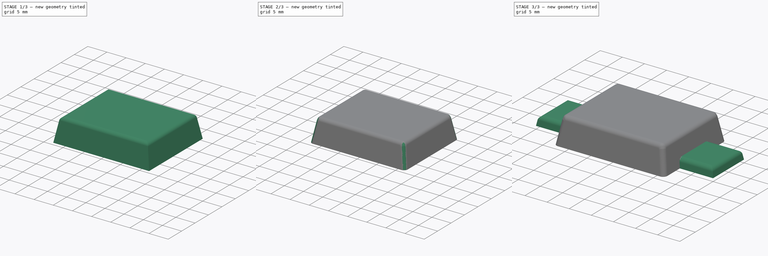
[diagram: build sequence overview — one tinted view per stage of 3, left to right]
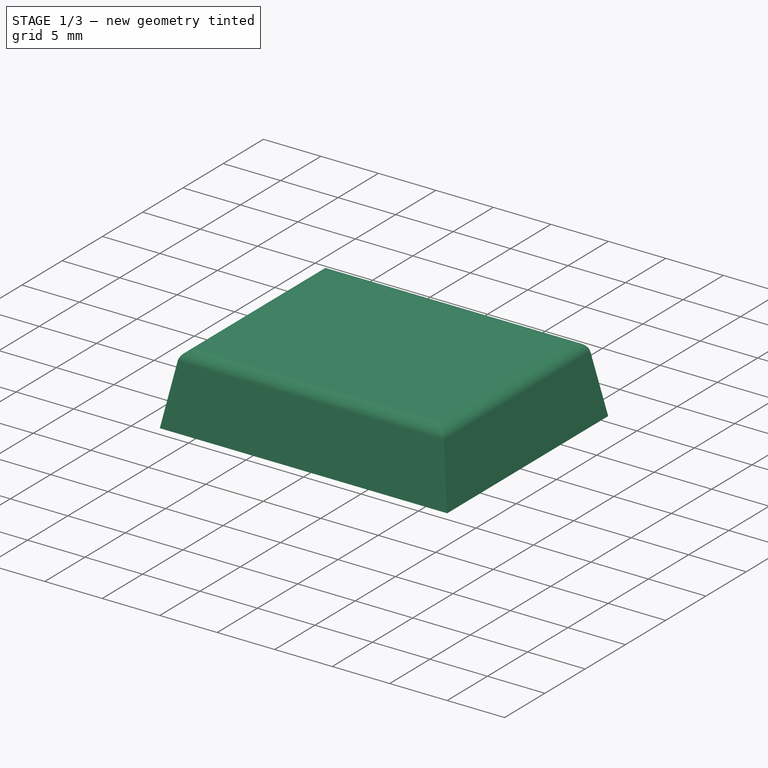
[diagram: stage 1 of 3 — iso view after this stage's code; geometry added in this stage tinted green]
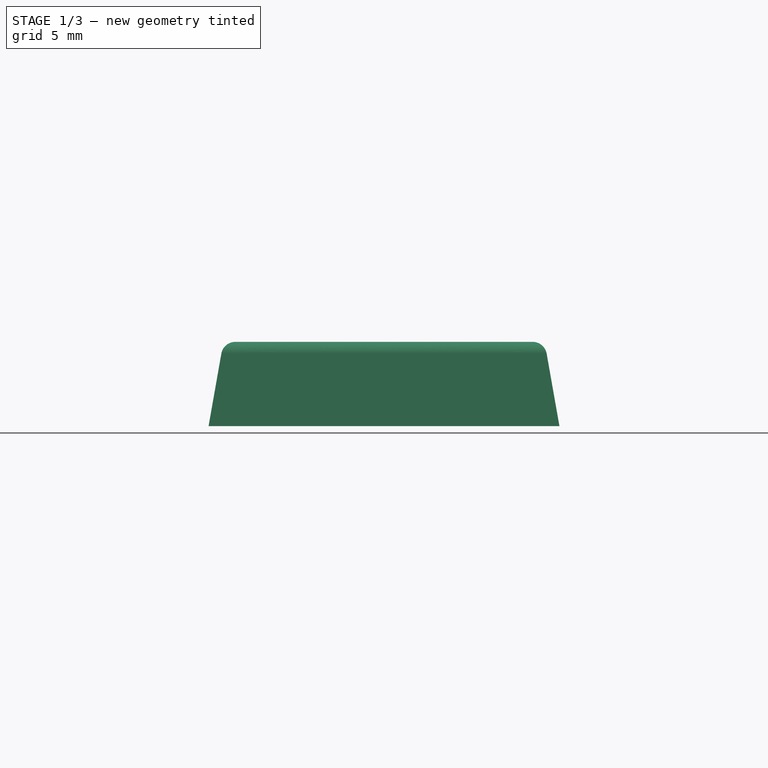
[diagram: stage 1 of 3 — front view after this stage's code; geometry added in this stage tinted green]
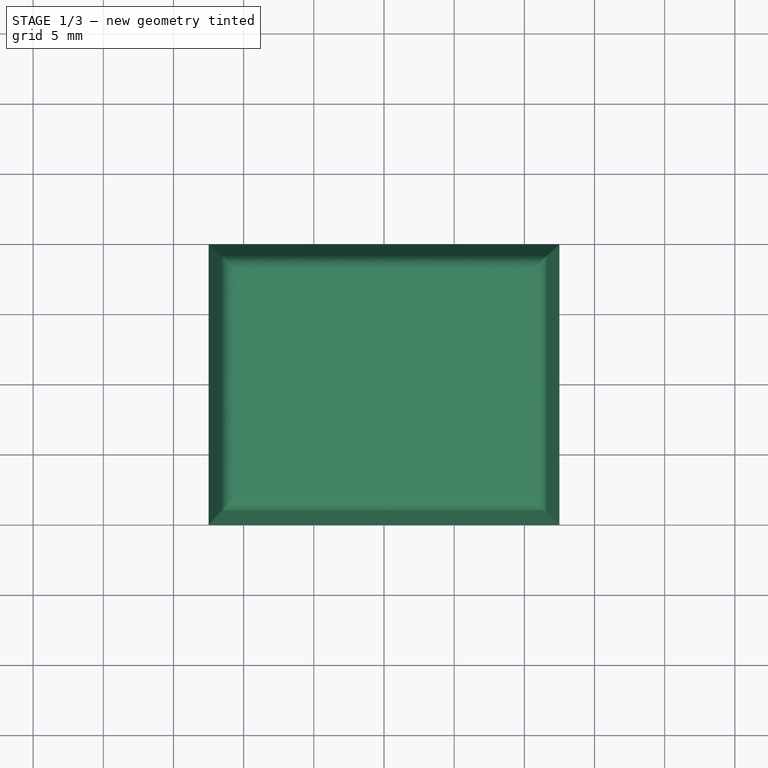
[diagram: stage 1 of 3 — top view after this stage's code; geometry added in this stage tinted green]
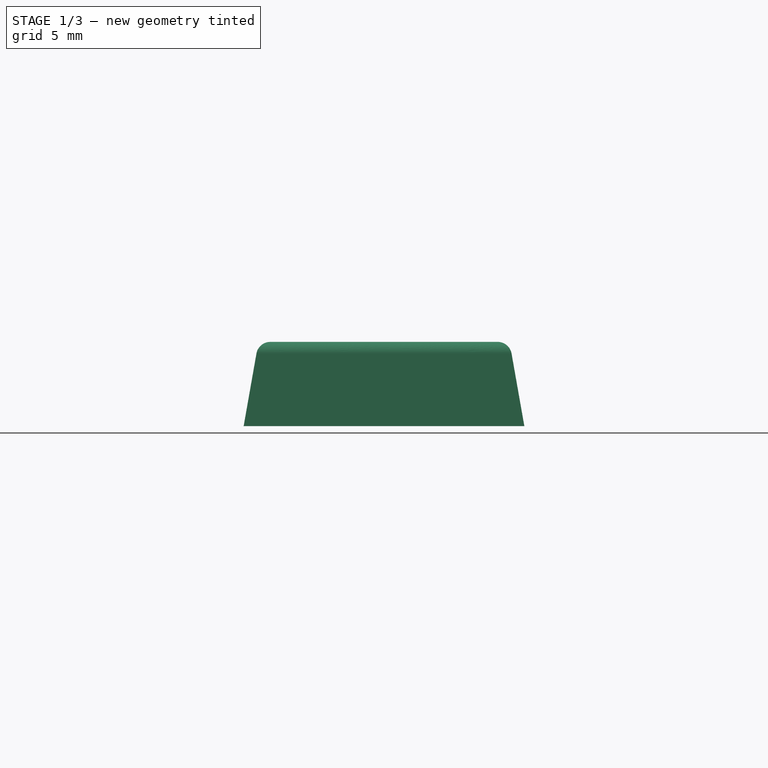
[diagram: stage 1 of 3 — right view after this stage's code; geometry added in this stage tinted green]
FCSTD DOCUMENT  (FreeCAD 0.16R6712 (Git))
Label: weight_20x25_taper
License: All rights reserved
LicenseURL: http://en.wikipedia.org/wiki/All_rights_reserved
objects: Part::Fillet×3, Sketcher::SketchObject×2, Part::Extrusion×2
note: 7 computed .brp shape members not serialized (recipe doc carries the construction recipe); baked Part::Feature solids carry a one-line shape summary decoded from their .brp

FEATURE [Sketcher::SketchObject] Sketch
  sketch-geometry (4):
    g0: LineSegment StartX=-12.5 StartY=10 StartZ=0 EndX=12.5 EndY=10 EndZ=0
    g1: LineSegment StartX=12.5 StartY=10 StartZ=0 EndX=12.5 EndY=-10 EndZ=0
    g2: LineSegment StartX=12.5 StartY=-10 StartZ=0 EndX=-12.5 EndY=-10 EndZ=0
    g3: LineSegment StartX=-12.5 StartY=-10 StartZ=0 EndX=-12.5 EndY=10 EndZ=0
  constraints (12):
    c: Coincident(g0,g1)
    c: Coincident(g1,g2)
    c: Coincident(g2,g3)
    c: Coincident(g3,g0)
    c: Horizontal(g0)
    c: Horizontal(g2)
    c: Vertical(g1)
    c: Vertical(g3)
    c: DistanceX(g0,g0) = 25
    c: DistanceY(g2,g0) = 20
    c: Symmetric(g0,g0,g-2)
    c: Symmetric(g0,g2,g-1)
FEATURE [Part::Extrusion] Extrude
  Base = -> Sketch
  Dir = (0,0,6)
  Solid = true
  TaperAngle = -10
FEATURE [Part::Fillet] Fillet
  Base = -> Extrude
  Edges = 4 edges r=1: [Edge3,Edge7,Edge10,Edge12]
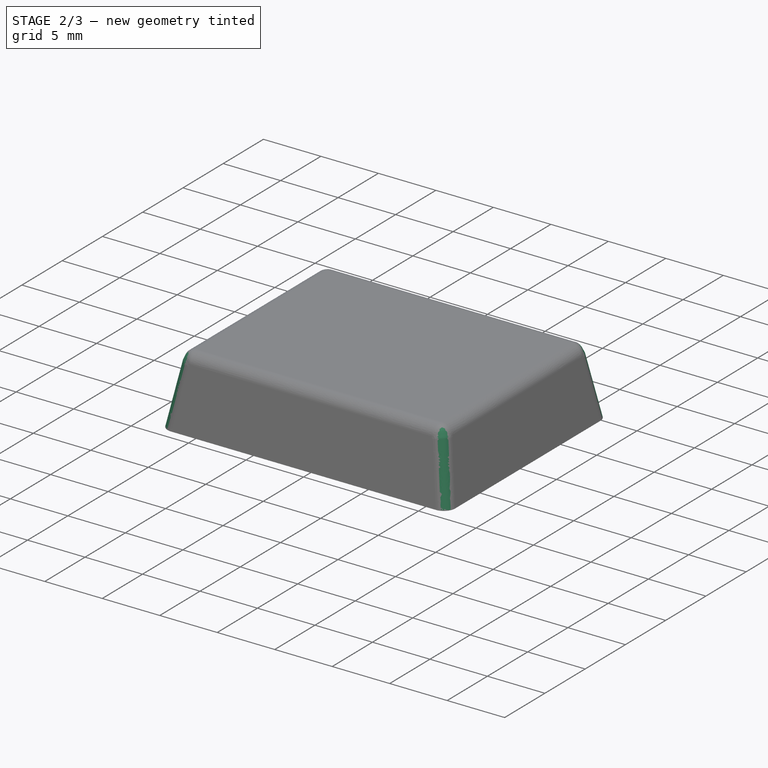
[diagram: stage 2 of 3 — iso view after this stage's code; geometry added in this stage tinted green]
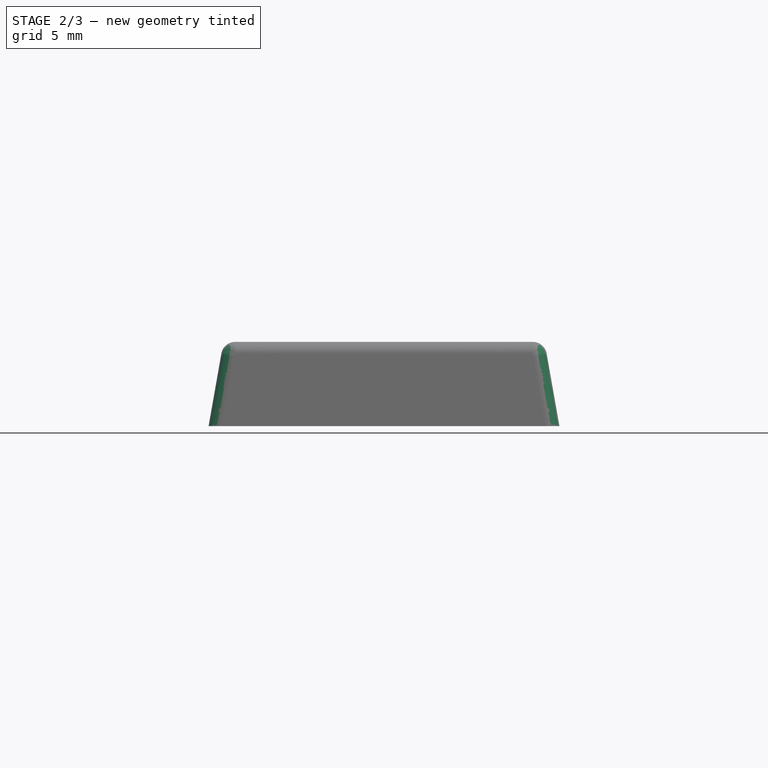
[diagram: stage 2 of 3 — front view after this stage's code; geometry added in this stage tinted green]
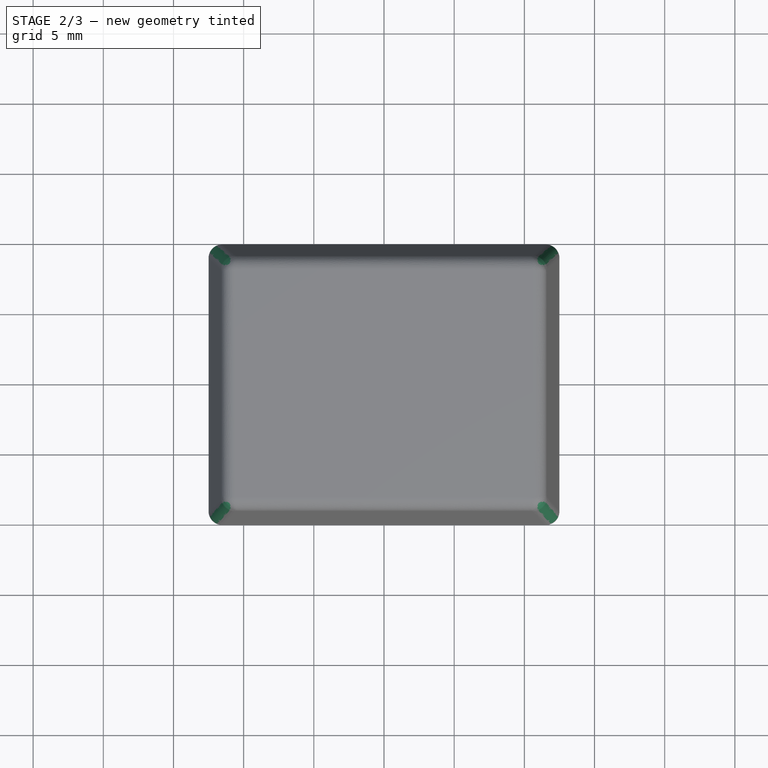
[diagram: stage 2 of 3 — top view after this stage's code; geometry added in this stage tinted green]
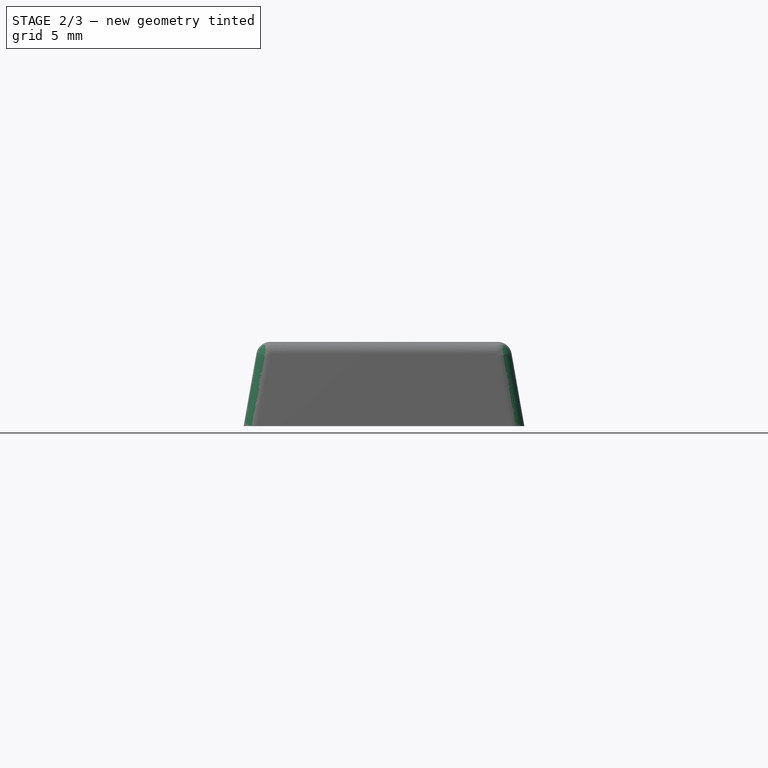
[diagram: stage 2 of 3 — right view after this stage's code; geometry added in this stage tinted green]
FEATURE [Part::Fillet] Fillet002
  Base = -> Fillet
  Edges = 4 edges r=1: [Edge1,Edge4,Edge5,Edge14]
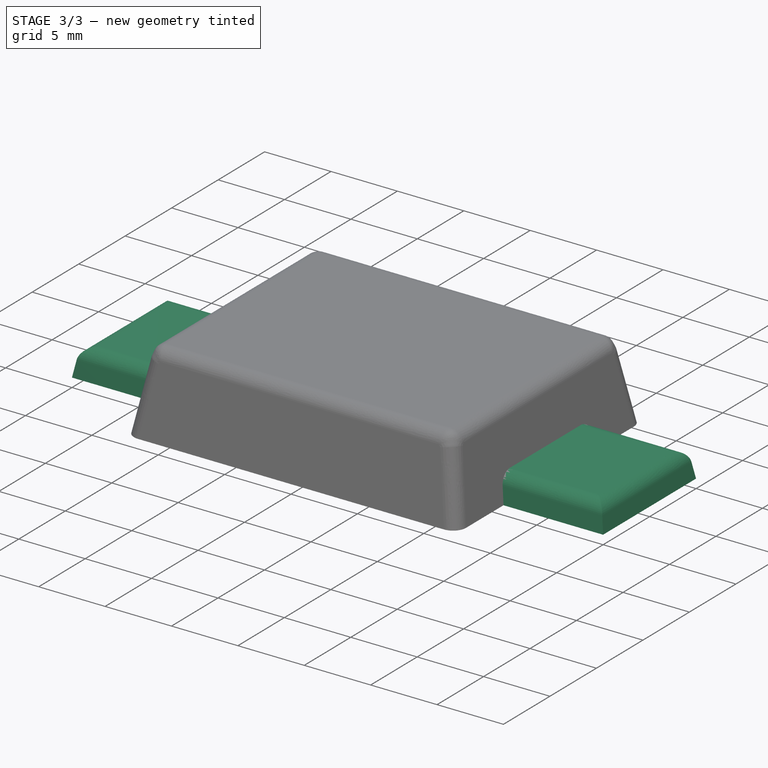
[diagram: stage 3 of 3 — iso view after this stage's code; geometry added in this stage tinted green]
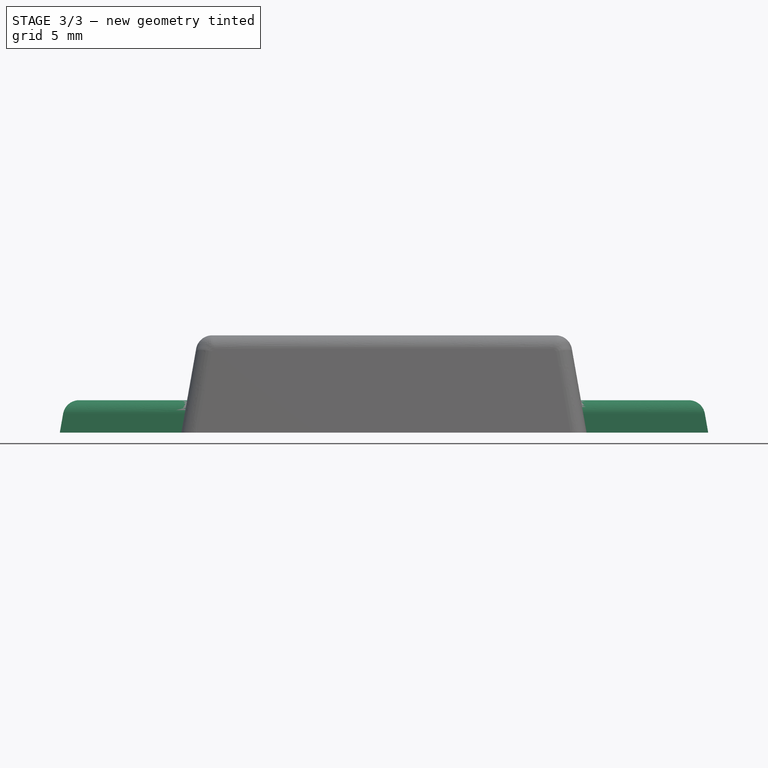
[diagram: stage 3 of 3 — front view after this stage's code; geometry added in this stage tinted green]
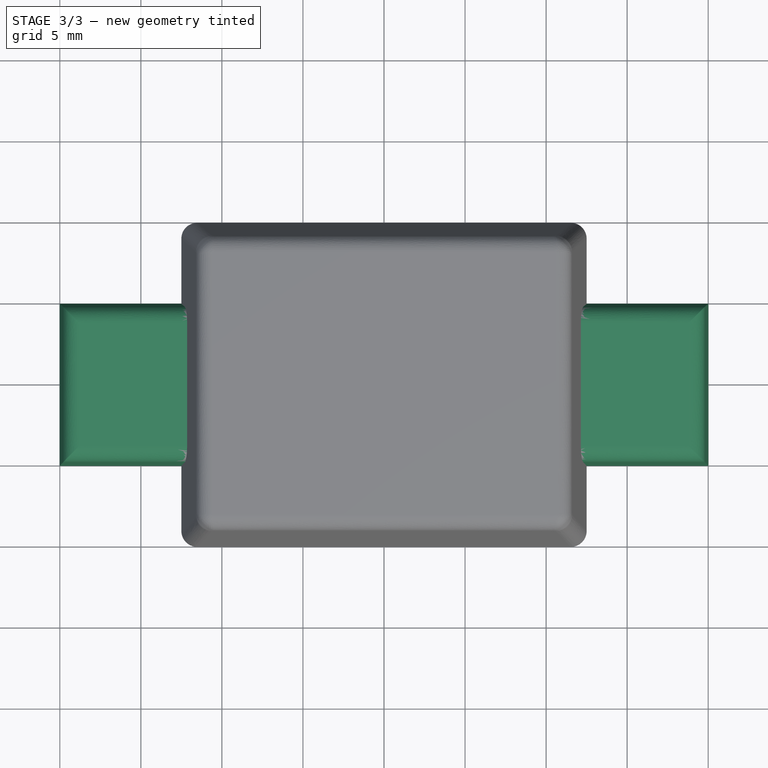
[diagram: stage 3 of 3 — top view after this stage's code; geometry added in this stage tinted green]
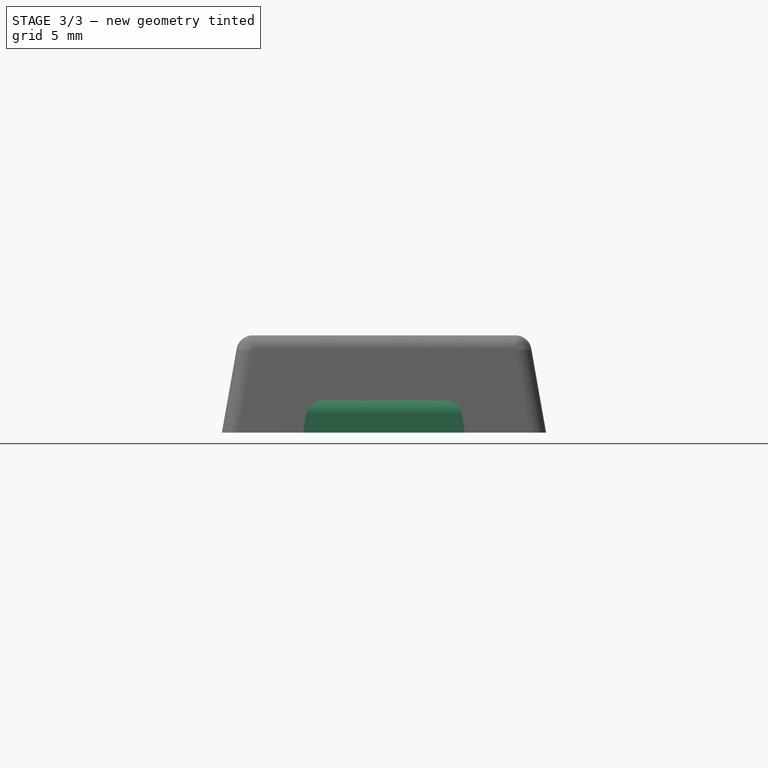
[diagram: stage 3 of 3 — right view after this stage's code; geometry added in this stage tinted green]
FEATURE [Sketcher::SketchObject] Sketch001
  sketch-geometry (4):
    g0: LineSegment StartX=-20 StartY=5 StartZ=0 EndX=20 EndY=5 EndZ=0
    g1: LineSegment StartX=20 StartY=5 StartZ=0 EndX=20 EndY=-5 EndZ=0
    g2: LineSegment StartX=20 StartY=-5 StartZ=0 EndX=-20 EndY=-5 EndZ=0
    g3: LineSegment StartX=-20 StartY=-5 StartZ=0 EndX=-20 EndY=5 EndZ=0
  constraints (12):
    c: Coincident(g0,g1)
    c: Coincident(g1,g2)
    c: Coincident(g2,g3)
    c: Coincident(g3,g0)
    c: Horizontal(g0)
    c: Horizontal(g2)
    c: Vertical(g1)
    c: Vertical(g3)
    c: DistanceX(g2,g1) = 40
    c: DistanceY(g2,g0) = 10
    c: Symmetric(g2,g0,g-1)
    c: Symmetric(g2,g1,g-2)
FEATURE [Part::Extrusion] Extrude001
  Base = -> Sketch001
  Dir = (0,0,2)
  Solid = true
  TaperAngle = -10
FEATURE [Part::Fillet] Fillet001
  Base = -> Extrude001
  Edges = 4 edges r=1: [Edge3,Edge7,Edge10,Edge12]
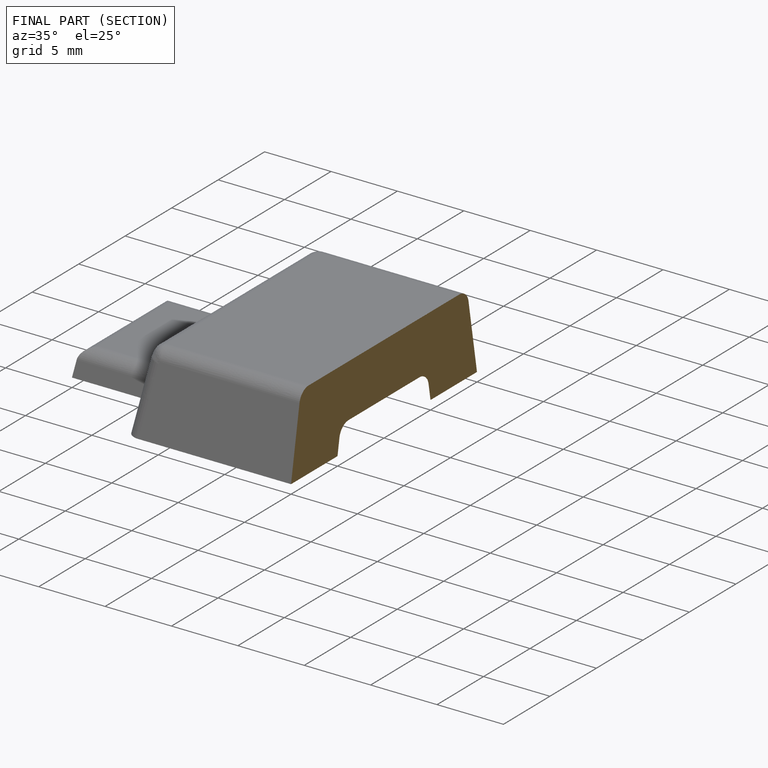
[diagram: finished part — half-section view (interior)]
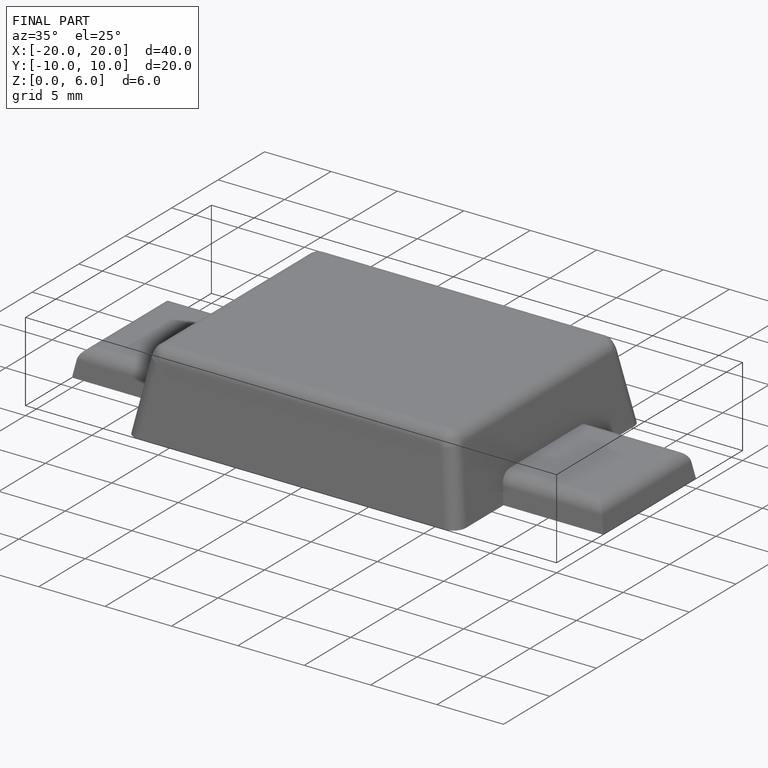
[diagram: finished part — iso view with bounding-box wireframe]
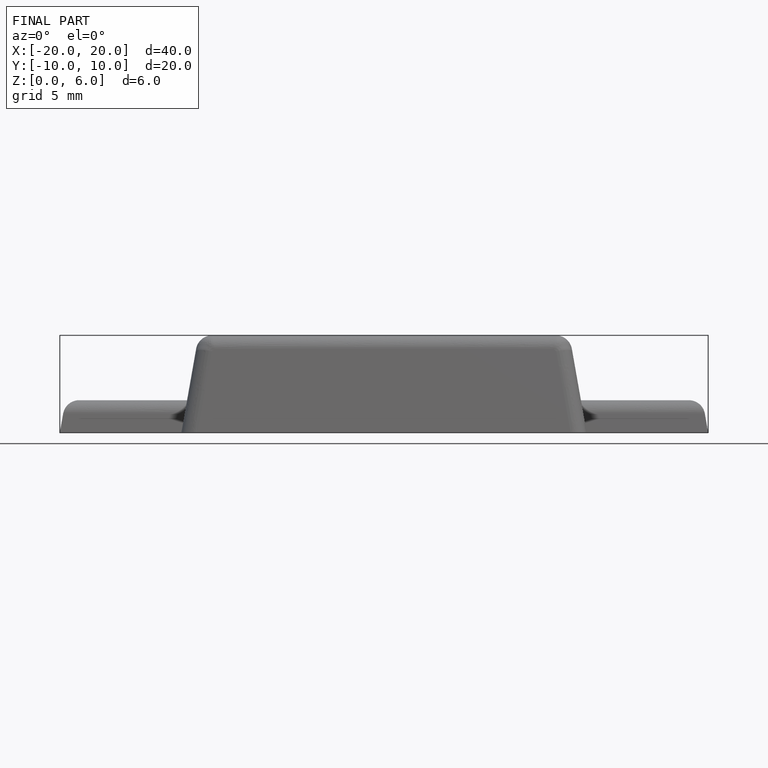
[diagram: finished part — front view with bounding-box wireframe]
